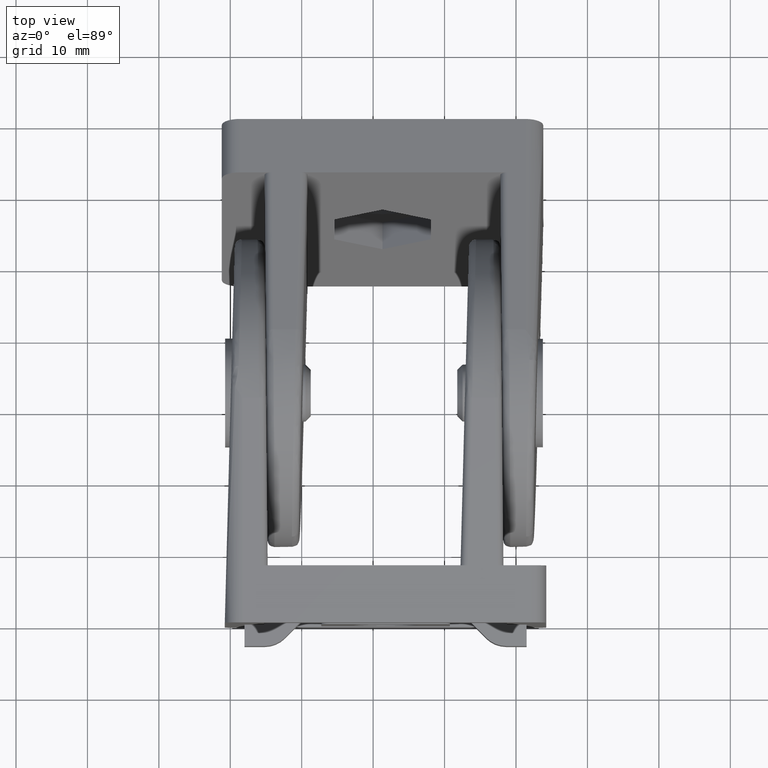
[diagram: clean part render]
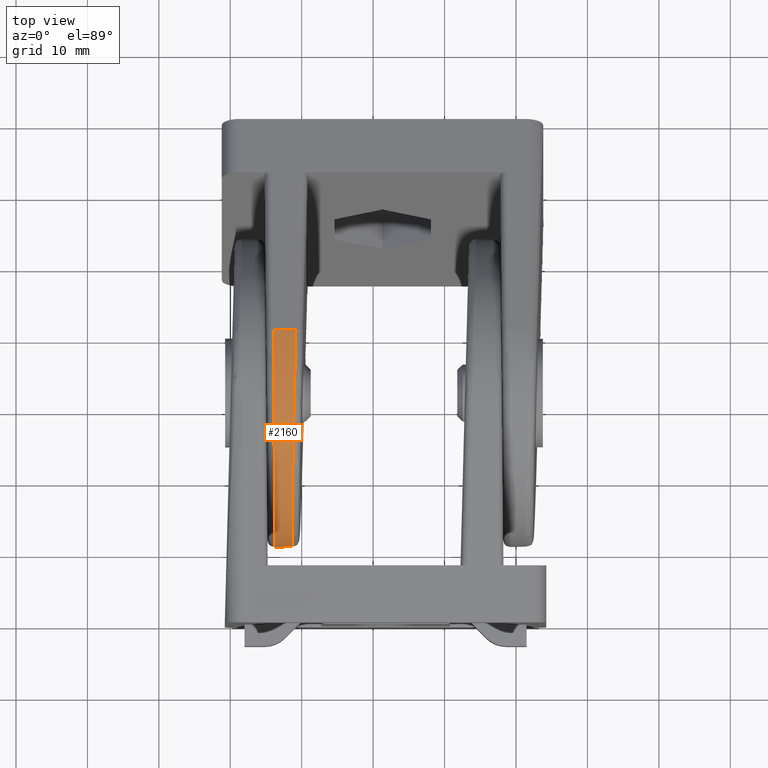
[diagram: same view with one face highlighted and labeled with its STEP entity id]
A machine part, top view. The second image highlights one B-rep face of the part: STEP entity #2160.
In plain terms, the highlighted cylindrical surface (partial cylindrical patch) has radius 22.5 mm, axis along (-1, 0, -0).
Its self-contained STEP definition (entity closure, byte-faithful):
#65=LINE('',#3333,#255);
#72=LINE('',#3346,#262);
#255=VECTOR('',#2552,3.17916857916502);
#262=VECTOR('',#2561,3.17916857916502);
#529=CYLINDRICAL_SURFACE('',#2327,22.5);
#604=FACE_OUTER_BOUND('',#740,.T.);
#740=EDGE_LOOP('',(#1680,#1681,#1682,#1683,#1684));
#838=(
BOUNDED_CURVE()
B_SPLINE_CURVE(3,(#3176,#3177,#3178,#3179,#3180,#3181,#3182,#3183,#3184,
#3185,#3186,#3187,#3188,#3189,#3190,#3191,#3192,#3193),.UNSPECIFIED.,.F.,
 .F.)
B_SPLINE_CURVE_WITH_KNOTS((4,2,2,2,2,2,2,2,4),(4.71238898038469,4.90873852123405,
5.10508806208341,5.30143760293278,5.49778714378214,5.6941366846315,5.89048622548086,
6.08683576633022,6.28318530717959),.UNSPECIFIED.)
CURVE()
GEOMETRIC_REPRESENTATION_ITEM()
RATIONAL_B_SPLINE_CURVE((1.,1.,1.,1.,1.,1.,1.,1.,1.,1.,1.,1.,1.,1.,1.,1.,
1.,1.))
REPRESENTATION_ITEM('')
);
#842=(
BOUNDED_CURVE()
B_SPLINE_CURVE(3,(#3728,#3729,#3730,#3731,#3732,#3733,#3734,#3735,#3736,
#3737,#3738,#3739,#3740,#3741,#3742,#3743,#3744,#3745),.UNSPECIFIED.,.F.,
 .F.)
B_SPLINE_CURVE_WITH_KNOTS((4,2,2,2,2,2,2,2,4),(0.,0.196349540849362,0.392699081698724,
0.589048622548086,0.785398163397448,0.98174770424681,1.17809724509617,1.37444678594553,
1.5707963267949),.UNSPECIFIED.)
CURVE()
GEOMETRIC_REPRESENTATION_ITEM()
RATIONAL_B_SPLINE_CURVE((1.,1.,1.,1.,1.,1.,1.,1.,1.,1.,1.,1.,1.,1.,1.,1.,
1.,1.))
REPRESENTATION_ITEM('')
);
#843=(
BOUNDED_CURVE()
B_SPLINE_CURVE(3,(#3746,#3747,#3748,#3749,#3750,#3751,#3752,#3753,#3754,
#3755,#3756,#3757,#3758,#3759,#3760,#3761,#3762,#3763,#3764,#3765,#3766,
#3767,#3768,#3769,#3770,#3771,#3772,#3773,#3774,#3775,#3776,#3777,#3778,
#3779),.UNSPECIFIED.,.F.,.F.)
B_SPLINE_CURVE_WITH_KNOTS((4,2,2,2,2,2,2,2,2,2,2,2,2,2,2,2,4),(1.5707963267949,
1.76714586764426,1.96349540849362,2.15984494934298,2.35619449019234,2.55254403104171,
2.74889357189107,2.94524311274043,3.14159265358979,3.33794219443916,3.53429173528852,
3.73064127613788,3.92699081698724,4.1233403578366,4.31968989868597,4.51603943953533,
4.71238898038469),.UNSPECIFIED.)
CURVE()
GEOMETRIC_REPRESENTATION_ITEM()
RATIONAL_B_SPLINE_CURVE((1.,1.,1.,1.,1.,1.,1.,1.,1.,1.,1.,1.,1.,1.,1.,1.,
1.,1.,1.,1.,1.,1.,1.,1.,1.,1.,1.,1.,1.,1.,1.,1.,1.,1.))
REPRESENTATION_ITEM('')
);
#956=VERTEX_POINT('',#3173);
#957=VERTEX_POINT('',#3175);
#995=VERTEX_POINT('',#3330);
#996=VERTEX_POINT('',#3332);
#1001=VERTEX_POINT('',#3345);
#1166=EDGE_CURVE('',#957,#956,#838,.T.);
#1208=EDGE_CURVE('',#996,#995,#65,.T.);
#1215=EDGE_CURVE('',#957,#1001,#72,.T.);
#1305=EDGE_CURVE('',#956,#996,#842,.T.);
#1306=EDGE_CURVE('',#995,#1001,#843,.T.);
#1680=ORIENTED_EDGE('',*,*,#1215,.F.);
#1681=ORIENTED_EDGE('',*,*,#1166,.T.);
#1682=ORIENTED_EDGE('',*,*,#1305,.T.);
#1683=ORIENTED_EDGE('',*,*,#1208,.T.);
#1684=ORIENTED_EDGE('',*,*,#1306,.T.);
#2160=ADVANCED_FACE('',(#604),#529,.T.);
#2327=AXIS2_PLACEMENT_3D('',#3727,#2701,#2702);
#2552=DIRECTION('',(1.,0.,0.));
#2561=DIRECTION('',(1.,0.,0.));
#2701=DIRECTION('center_axis',(1.,0.,0.));
#2702=DIRECTION('ref_axis',(0.,0.,-1.));
#3173=CARTESIAN_POINT('',(12.678709263104,54.,22.5));
#3175=CARTESIAN_POINT('',(12.1157119493666,31.5,0.));
#3176=CARTESIAN_POINT('Ctrl Pts',(12.1157119493666,31.5,8.32667268468867E-16));
#3177=CARTESIAN_POINT('Ctrl Pts',(12.15256045537,32.9726382610968,3.57063915471893E-16));
#3178=CARTESIAN_POINT('Ctrl Pts',(12.1894072142727,34.4452066997945,0.145036977391396));
#3179=CARTESIAN_POINT('Ctrl Pts',(12.2616873389229,37.3338577909312,0.719625404463229));
#3180=CARTESIAN_POINT('Ctrl Pts',(12.2971184994807,38.7498523136402,1.14916264693288));
#3181=CARTESIAN_POINT('Ctrl Pts',(12.3652048881192,41.4709021427888,2.27625839005919));
#3182=CARTESIAN_POINT('Ctrl Pts',(12.3978584327023,42.7758901688408,2.97378902226661));
#3183=CARTESIAN_POINT('Ctrl Pts',(12.4591345635959,45.2247703170413,4.61007842411885));
#3184=CARTESIAN_POINT('Ctrl Pts',(12.4877556347978,46.3686018884433,5.54879673504862));
#3185=CARTESIAN_POINT('Ctrl Pts',(12.5398667006024,48.4512032649513,7.63139811155665));
#3186=CARTESIAN_POINT('Ctrl Pts',(12.5633554067091,49.3899215758791,8.77522968295561));
#3187=CARTESIAN_POINT('Ctrl Pts',(12.6042988083853,51.0262109777354,11.2241098311623));
#3188=CARTESIAN_POINT('Ctrl Pts',(12.6217524915931,51.7237416099412,12.5290978572121));
#3189=CARTESIAN_POINT('Ctrl Pts',(12.6499547971816,52.8508373530667,15.2501476863588));
#3190=CARTESIAN_POINT('Ctrl Pts',(12.6607027222327,53.280374595536,16.6661422090649));
#3191=CARTESIAN_POINT('Ctrl Pts',(12.6750801329408,53.8549630226094,19.5547933002092));
#3192=CARTESIAN_POINT('Ctrl Pts',(12.6787092631052,54.,21.0273617389003));
#3193=CARTESIAN_POINT('Ctrl Pts',(12.678709263104,54.,22.5));
#3330=CARTESIAN_POINT('',(15.2948805285316,31.5,45.));
#3332=CARTESIAN_POINT('',(12.1157119493666,31.5,45.));
#3333=CARTESIAN_POINT('',(-22.5,31.5,45.));
#3345=CARTESIAN_POINT('',(15.2948805285316,31.5,0.));
#3346=CARTESIAN_POINT('',(-22.5,31.5,0.));
#3727=CARTESIAN_POINT('Origin',(-22.5,31.5,22.5));
#3728=CARTESIAN_POINT('Ctrl Pts',(12.678709263104,54.,22.5));
#3729=CARTESIAN_POINT('Ctrl Pts',(12.6787092631052,54.,23.9726382610991));
#3730=CARTESIAN_POINT('Ctrl Pts',(12.6750801329408,53.8549630226092,25.4452066997914));
#3731=CARTESIAN_POINT('Ctrl Pts',(12.6607027222327,53.2803745955361,28.3338577909344));
#3732=CARTESIAN_POINT('Ctrl Pts',(12.6499547971817,52.8508373530659,29.7498523136432));
#3733=CARTESIAN_POINT('Ctrl Pts',(12.6217524915931,51.723741609942,32.4709021427858));
#3734=CARTESIAN_POINT('Ctrl Pts',(12.6042988083853,51.0262109777331,33.7758901688413));
#3735=CARTESIAN_POINT('Ctrl Pts',(12.563355406709,49.3899215758815,36.2247703170408));
#3736=CARTESIAN_POINT('Ctrl Pts',(12.5398667006013,48.4512032649499,37.3686018884447));
#3737=CARTESIAN_POINT('Ctrl Pts',(12.4877556347989,46.3686018884447,39.4512032649499));
#3738=CARTESIAN_POINT('Ctrl Pts',(12.4591345635958,45.2247703170446,40.389921575879));
#3739=CARTESIAN_POINT('Ctrl Pts',(12.3978584327024,42.7758901688375,42.0262109777356));
#3740=CARTESIAN_POINT('Ctrl Pts',(12.3652048881179,41.470902142794,42.7237416099386));
#3741=CARTESIAN_POINT('Ctrl Pts',(12.2971184994819,38.7498523136351,43.8508373530693));
#3742=CARTESIAN_POINT('Ctrl Pts',(12.2616873389228,37.3338577909338,44.2803745955363));
#3743=CARTESIAN_POINT('Ctrl Pts',(12.1894072142729,34.4452066997921,44.8549630226091));
#3744=CARTESIAN_POINT('Ctrl Pts',(12.1525604553702,32.9726382610986,45.));
#3745=CARTESIAN_POINT('Ctrl Pts',(12.1157119493666,31.5,45.));
#3746=CARTESIAN_POINT('Ctrl Pts',(15.2948805285316,31.5,45.));
#3747=CARTESIAN_POINT('Ctrl Pts',(15.2826001877613,32.9726382610977,45.));
#3748=CARTESIAN_POINT('Ctrl Pts',(15.2703204292455,34.4452066997932,44.8549630226089));
#3749=CARTESIAN_POINT('Ctrl Pts',(15.2462319475757,37.3338577909325,44.2803745955365));
#3750=CARTESIAN_POINT('Ctrl Pts',(15.2344239593388,38.7498523136441,43.8508373530655));
#3751=CARTESIAN_POINT('Ctrl Pts',(15.2117331057661,41.470902142785,42.7237416099424));
#3752=CARTESIAN_POINT('Ctrl Pts',(15.2008508014808,42.775890168834,42.0262109777379));
#3753=CARTESIAN_POINT('Ctrl Pts',(15.1804295727848,45.2247703170481,40.3899215758766));
#3754=CARTESIAN_POINT('Ctrl Pts',(15.1708911533031,46.3686018884374,39.4512032649573));
#3755=CARTESIAN_POINT('Ctrl Pts',(15.1535243258456,48.4512032649573,37.3686018884373));
#3756=CARTESIAN_POINT('Ctrl Pts',(15.1456963472796,49.3899215758769,36.2247703170477));
#3757=CARTESIAN_POINT('Ctrl Pts',(15.1320513185041,51.0262109777376,33.7758901688344));
#3758=CARTESIAN_POINT('Ctrl Pts',(15.1262346056792,51.7237416099401,32.4709021427905));
#3759=CARTESIAN_POINT('Ctrl Pts',(15.1168357463873,52.8508373530678,29.7498523136386));
#3760=CARTESIAN_POINT('Ctrl Pts',(15.1132538323146,53.2803745955362,28.3338577909339));
#3761=CARTESIAN_POINT('Ctrl Pts',(15.1084623354013,53.8549630226091,25.4452066997919));
#3762=CARTESIAN_POINT('Ctrl Pts',(15.1072528710304,54.,23.9726215558385));
#3763=CARTESIAN_POINT('Ctrl Pts',(15.1072528710304,54.,21.0273784441614));
#3764=CARTESIAN_POINT('Ctrl Pts',(15.1084623354013,53.8549630226093,19.5547933002091));
#3765=CARTESIAN_POINT('Ctrl Pts',(15.1132538323146,53.2803745955361,16.6661422090652));
#3766=CARTESIAN_POINT('Ctrl Pts',(15.1168357463873,52.8508373530682,15.2501476863625));
#3767=CARTESIAN_POINT('Ctrl Pts',(15.1262346056792,51.7237416099397,12.5290978572085));
#3768=CARTESIAN_POINT('Ctrl Pts',(15.1320513185041,51.0262109777366,11.2241098311639));
#3769=CARTESIAN_POINT('Ctrl Pts',(15.1456963472796,49.389921575878,8.77522968295399));
#3770=CARTESIAN_POINT('Ctrl Pts',(15.1535243258456,48.4512032649558,7.63139811156111));
#3771=CARTESIAN_POINT('Ctrl Pts',(15.1708911533031,46.3686018884389,5.54879673504423));
#3772=CARTESIAN_POINT('Ctrl Pts',(15.1804295727836,45.2247703170419,4.61007842411925));
#3773=CARTESIAN_POINT('Ctrl Pts',(15.2008508014819,42.7758901688402,2.97378902226623));
#3774=CARTESIAN_POINT('Ctrl Pts',(15.2117331057661,41.4709021427855,2.27625839005785));
#3775=CARTESIAN_POINT('Ctrl Pts',(15.2344239593388,38.7498523136436,1.14916264693427));
#3776=CARTESIAN_POINT('Ctrl Pts',(15.2462319475758,37.3338577909377,0.719625404464506));
#3777=CARTESIAN_POINT('Ctrl Pts',(15.2703204292454,34.4452066997882,0.145036977390126));
#3778=CARTESIAN_POINT('Ctrl Pts',(15.2826001877613,32.9726382611016,-2.12792746386488E-15));
#3779=CARTESIAN_POINT('Ctrl Pts',(15.2948805285316,31.5,-2.63677968348475E-15));